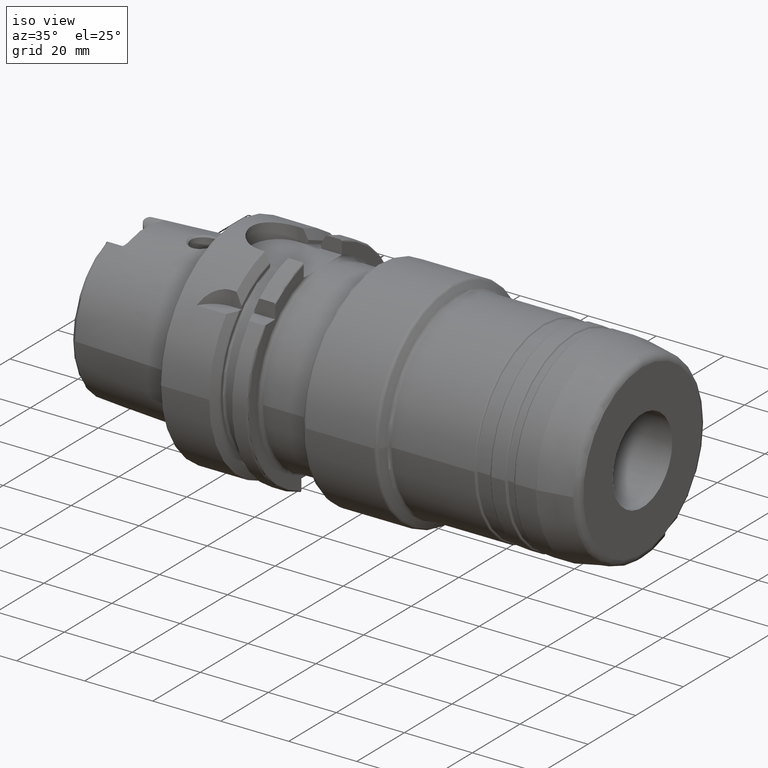
[diagram: clean part render]
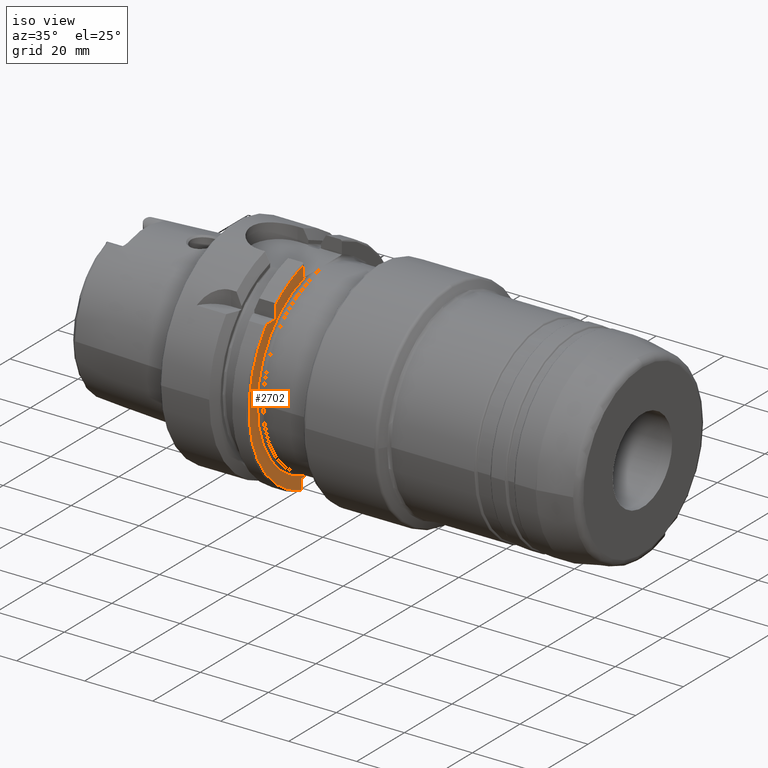
[diagram: same view with one face highlighted and labeled with its STEP entity id]
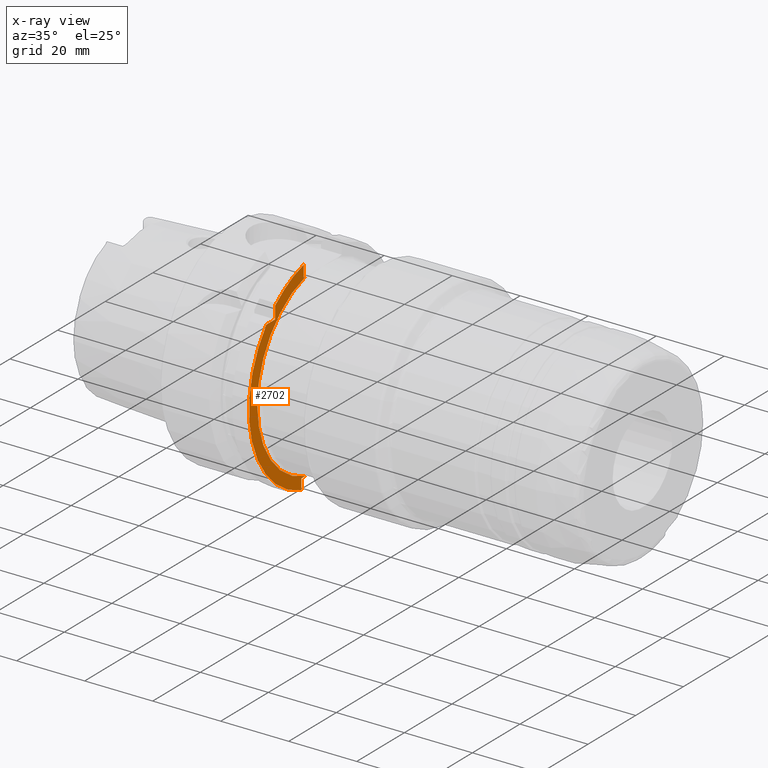
[diagram: x-ray of the same camera — body ghosted, the highlighted face saturated]
A machine part, iso view. The second image highlights one B-rep face of the part: STEP entity #2702.
The next image is the same camera in x-ray: the body ghosted, the highlighted face saturated — about 0% of this face is hidden behind the body in this view.
In plain terms, the highlighted planar face has unit normal (1, 0, 0).
Its self-contained STEP definition (entity closure, byte-faithful):
#48=PLANE('',#2933);
#191=LINE('',#4473,#313);
#192=LINE('',#4475,#314);
#193=LINE('',#4479,#315);
#194=LINE('',#4481,#316);
#195=LINE('',#4485,#317);
#196=LINE('',#4486,#318);
#313=VECTOR('',#3421,10.);
#314=VECTOR('',#3422,10.);
#315=VECTOR('',#3425,10.);
#316=VECTOR('',#3426,10.);
#317=VECTOR('',#3429,10.);
#318=VECTOR('',#3430,10.);
#484=FACE_OUTER_BOUND('',#628,.T.);
#628=EDGE_LOOP('',(#1909,#1910,#1911,#1912,#1913,#1914,#1915,#1916,#1917));
#830=CIRCLE('',#2932,27.5);
#831=CIRCLE('',#2934,31.);
#832=CIRCLE('',#2935,31.);
#1059=VERTEX_POINT('',#4363);
#1063=VERTEX_POINT('',#4370);
#1064=VERTEX_POINT('',#4472);
#1065=VERTEX_POINT('',#4474);
#1066=VERTEX_POINT('',#4476);
#1067=VERTEX_POINT('',#4478);
#1068=VERTEX_POINT('',#4480);
#1069=VERTEX_POINT('',#4482);
#1070=VERTEX_POINT('',#4484);
#1390=EDGE_CURVE('',#1063,#1059,#830,.T.);
#1395=EDGE_CURVE('',#1063,#1064,#191,.T.);
#1396=EDGE_CURVE('',#1064,#1065,#192,.T.);
#1397=EDGE_CURVE('',#1065,#1066,#831,.T.);
#1398=EDGE_CURVE('',#1066,#1067,#193,.T.);
#1399=EDGE_CURVE('',#1067,#1068,#194,.T.);
#1400=EDGE_CURVE('',#1068,#1069,#832,.T.);
#1401=EDGE_CURVE('',#1069,#1070,#195,.T.);
#1402=EDGE_CURVE('',#1070,#1059,#196,.T.);
#1909=ORIENTED_EDGE('',*,*,#1390,.F.);
#1910=ORIENTED_EDGE('',*,*,#1395,.T.);
#1911=ORIENTED_EDGE('',*,*,#1396,.T.);
#1912=ORIENTED_EDGE('',*,*,#1397,.T.);
#1913=ORIENTED_EDGE('',*,*,#1398,.T.);
#1914=ORIENTED_EDGE('',*,*,#1399,.T.);
#1915=ORIENTED_EDGE('',*,*,#1400,.T.);
#1916=ORIENTED_EDGE('',*,*,#1401,.T.);
#1917=ORIENTED_EDGE('',*,*,#1402,.T.);
#2702=ADVANCED_FACE('',(#484),#48,.T.);
#2932=AXIS2_PLACEMENT_3D('',#4372,#3415,#3416);
#2933=AXIS2_PLACEMENT_3D('',#4471,#3419,#3420);
#2934=AXIS2_PLACEMENT_3D('',#4477,#3423,#3424);
#2935=AXIS2_PLACEMENT_3D('',#4483,#3427,#3428);
#3415=DIRECTION('center_axis',(1.,0.,0.));
#3416=DIRECTION('ref_axis',(0.,-1.,-1.22464679914735E-16));
#3419=DIRECTION('center_axis',(1.,0.,0.));
#3420=DIRECTION('ref_axis',(0.,0.,-1.));
#3421=DIRECTION('',(0.,-1.,0.));
#3422=DIRECTION('',(0.,0.,1.));
#3423=DIRECTION('center_axis',(1.,0.,0.));
#3424=DIRECTION('ref_axis',(0.,0.,-1.));
#3425=DIRECTION('',(0.,0.,-1.));
#3426=DIRECTION('',(0.,-1.,0.));
#3427=DIRECTION('center_axis',(1.,0.,0.));
#3428=DIRECTION('ref_axis',(0.,0.,-1.));
#3429=DIRECTION('',(0.,0.,1.));
#3430=DIRECTION('',(0.,1.,0.));
#4363=CARTESIAN_POINT('',(26.,-7.34846922834954,-26.5));
#4370=CARTESIAN_POINT('',(26.,-7.34846922834954,26.5));
#4372=CARTESIAN_POINT('Origin',(26.,0.,0.));
#4471=CARTESIAN_POINT('Origin',(26.,0.,0.));
#4472=CARTESIAN_POINT('',(26.,-8.,26.5));
#4473=CARTESIAN_POINT('',(26.,5.55111512312578E-16,26.5));
#4474=CARTESIAN_POINT('',(26.,-8.,29.9499582637439));
#4475=CARTESIAN_POINT('',(26.,-8.,13.25));
#4476=CARTESIAN_POINT('',(26.,-20.,23.685438564654));
#4477=CARTESIAN_POINT('Origin',(26.,0.,0.));
#4478=CARTESIAN_POINT('',(26.,-20.,20.));
#4479=CARTESIAN_POINT('',(26.,-20.,10.));
#4480=CARTESIAN_POINT('',(26.,-23.685438564654,20.));
#4481=CARTESIAN_POINT('',(26.,-12.,20.));
#4482=CARTESIAN_POINT('',(26.,-9.,-29.6647939483827));
#4483=CARTESIAN_POINT('Origin',(26.,0.,0.));
#4484=CARTESIAN_POINT('',(26.,-9.,-26.5));
#4485=CARTESIAN_POINT('',(26.,-9.,-13.25));
#4486=CARTESIAN_POINT('',(26.,1.94289029309402E-15,-26.5));